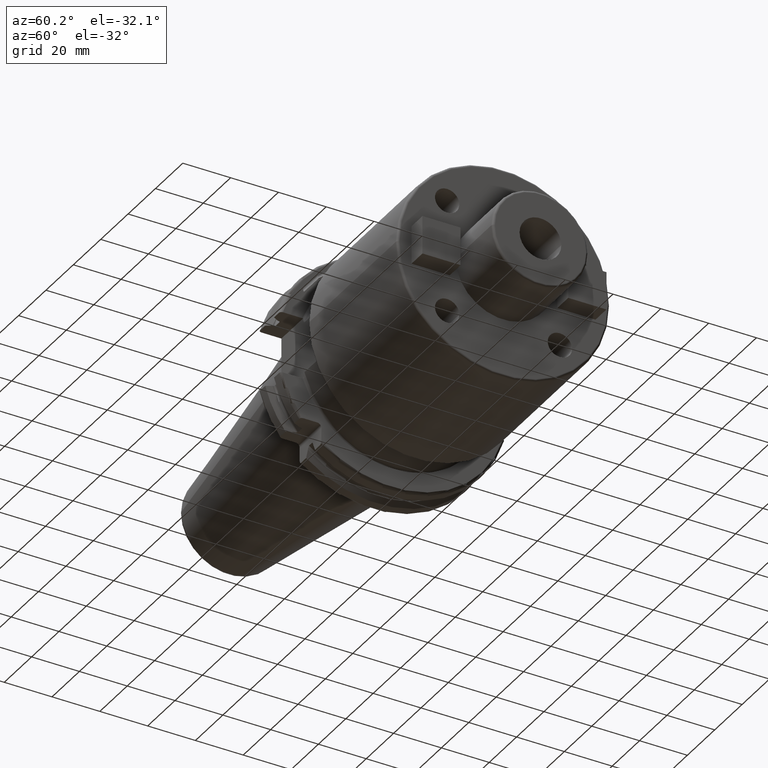
[diagram: clean part render]
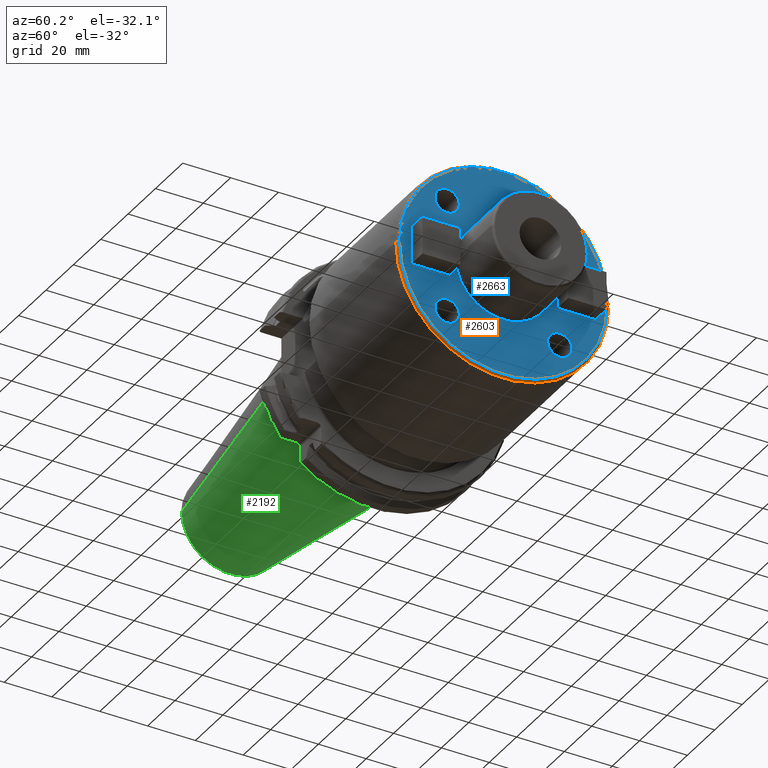
[diagram: same view with three faces highlighted in distinct colors, each labeled with its STEP entity id]
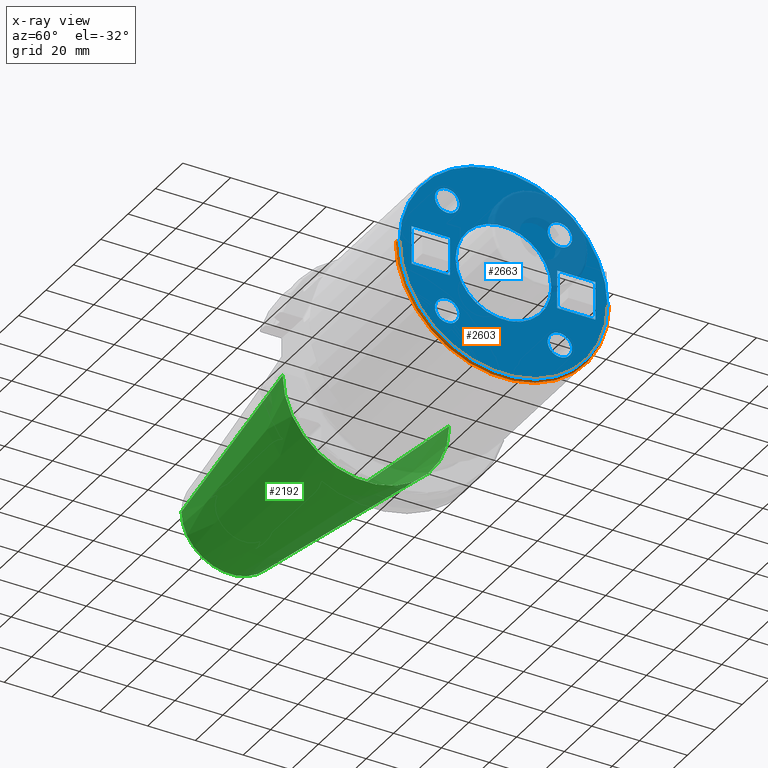
[diagram: x-ray of the same camera — body ghosted, the three highlighted faces saturated]
A machine part, auxiliary view with three faces highlighted in distinct colors.
The next image is the same camera in x-ray (body ghosted, the three faces saturated) — at least one of them is partly hidden behind the body in this view.
Their STEP definitions:

[orange] entity #2603 — the highlighted toroidal blend (fillet) surface has major radius 43.5 mm and minor (blend) radius 1 mm.
#404=CARTESIAN_POINT('',(9.9E1,0.E0,0.E0));
#405=DIRECTION('',(-1.E0,0.E0,0.E0));
#406=DIRECTION('',(0.E0,1.E0,0.E0));
#407=AXIS2_PLACEMENT_3D('',#404,#405,#406);
#428=CARTESIAN_POINT('',(9.9E1,-4.35E1,-1.196723276031E-11));
#429=DIRECTION('',(0.E0,-2.751089286934E-13,1.E0));
#430=DIRECTION('',(0.E0,-1.E0,-2.751089286934E-13));
#431=AXIS2_PLACEMENT_3D('',#428,#429,#430);
#433=CARTESIAN_POINT('',(9.9E1,4.35E1,1.196309717955E-11));
#434=DIRECTION('',(0.E0,2.750139525831E-13,-1.E0));
#435=DIRECTION('',(0.E0,1.E0,2.750139525831E-13));
#436=AXIS2_PLACEMENT_3D('',#433,#434,#435);
#448=CARTESIAN_POINT('',(1.E2,0.E0,0.E0));
#449=DIRECTION('',(-1.E0,0.E0,0.E0));
#450=DIRECTION('',(0.E0,1.E0,0.E0));
#451=AXIS2_PLACEMENT_3D('',#448,#449,#450);
#1969=CARTESIAN_POINT('',(9.9E1,4.45E1,0.E0));
#1970=CARTESIAN_POINT('',(9.9E1,-4.45E1,-1.089935651241E-14));
#1971=VERTEX_POINT('',#1969);
#1972=VERTEX_POINT('',#1970);
#1973=CARTESIAN_POINT('',(1.E2,4.35E1,0.E0));
#1974=CARTESIAN_POINT('',(1.E2,-4.35E1,-1.065442715258E-14));
#1975=VERTEX_POINT('',#1973);
#1976=VERTEX_POINT('',#1974);
#2591=CARTESIAN_POINT('',(9.9E1,0.E0,0.E0));
#2592=DIRECTION('',(1.E0,0.E0,0.E0));
#2593=DIRECTION('',(0.E0,9.999944804460E-1,3.322510740993E-3));
#2594=AXIS2_PLACEMENT_3D('',#2591,#2592,#2593);
#2595=TOROIDAL_SURFACE('',#2594,4.35E1,1.E0);
#2596=ORIENTED_EDGE('',*,*,#2543,.T.);
#2597=ORIENTED_EDGE('',*,*,#2586,.T.);
#2599=ORIENTED_EDGE('',*,*,#2598,.F.);
#2600=ORIENTED_EDGE('',*,*,#2582,.F.);
#2601=EDGE_LOOP('',(#2596,#2597,#2599,#2600));
#2602=FACE_OUTER_BOUND('',#2601,.F.);
#2603=ADVANCED_FACE('',(#2602),#2595,.T.);
#408=CIRCLE('',#407,4.45E1);
#432=CIRCLE('',#431,1.E0);
#437=CIRCLE('',#436,1.E0);
#452=CIRCLE('',#451,4.35E1);
#2543=EDGE_CURVE('',#1971,#1972,#408,.T.);
#2582=EDGE_CURVE('',#1971,#1975,#437,.T.);
#2586=EDGE_CURVE('',#1972,#1976,#432,.T.);
#2598=EDGE_CURVE('',#1975,#1976,#452,.T.);

[blue] entity #2663 — the highlighted planar face has unit normal (1, 0, 0).
#438=CARTESIAN_POINT('',(1.E2,0.E0,0.E0));
#439=DIRECTION('',(1.E0,0.E0,0.E0));
#440=DIRECTION('',(0.E0,1.E0,0.E0));
#441=AXIS2_PLACEMENT_3D('',#438,#439,#440);
#443=CARTESIAN_POINT('',(1.E2,0.E0,0.E0));
#444=DIRECTION('',(-1.E0,0.E0,0.E0));
#445=DIRECTION('',(0.E0,1.E0,0.E0));
#446=AXIS2_PLACEMENT_3D('',#443,#444,#445);
#448=CARTESIAN_POINT('',(1.E2,0.E0,0.E0));
#449=DIRECTION('',(-1.E0,0.E0,0.E0));
#450=DIRECTION('',(0.E0,1.E0,0.E0));
#451=AXIS2_PLACEMENT_3D('',#448,#449,#450);
#453=CARTESIAN_POINT('',(1.E2,0.E0,0.E0));
#454=DIRECTION('',(-1.E0,0.E0,0.E0));
#455=DIRECTION('',(0.E0,-1.E0,0.E0));
#456=AXIS2_PLACEMENT_3D('',#453,#454,#455);
#458=DIRECTION('',(0.E0,-1.E0,0.E0));
#459=VECTOR('',#458,1.6E1);
#460=CARTESIAN_POINT('',(1.E2,3.85E1,8.E0));
#461=LINE('',#460,#459);
#462=DIRECTION('',(0.E0,0.E0,-1.E0));
#463=VECTOR('',#462,1.6E1);
#464=CARTESIAN_POINT('',(1.E2,2.25E1,8.E0));
#465=LINE('',#464,#463);
#466=DIRECTION('',(0.E0,1.E0,0.E0));
#467=VECTOR('',#466,1.6E1);
#468=CARTESIAN_POINT('',(1.E2,2.25E1,-8.E0));
#469=LINE('',#468,#467);
#470=DIRECTION('',(0.E0,0.E0,1.E0));
#471=VECTOR('',#470,1.6E1);
#472=CARTESIAN_POINT('',(1.E2,3.85E1,-8.E0));
#473=LINE('',#472,#471);
#474=DIRECTION('',(0.E0,-1.E0,0.E0));
#475=VECTOR('',#474,1.6E1);
#476=CARTESIAN_POINT('',(1.E2,-2.25E1,8.E0));
#477=LINE('',#476,#475);
#478=DIRECTION('',(0.E0,0.E0,-1.E0));
#479=VECTOR('',#478,1.6E1);
#480=CARTESIAN_POINT('',(1.E2,-3.85E1,8.E0));
#481=LINE('',#480,#479);
#482=DIRECTION('',(0.E0,1.E0,0.E0));
#483=VECTOR('',#482,1.6E1);
#484=CARTESIAN_POINT('',(1.E2,-3.85E1,-8.E0));
#485=LINE('',#484,#483);
#486=DIRECTION('',(0.E0,0.E0,1.E0));
#487=VECTOR('',#486,1.6E1);
#488=CARTESIAN_POINT('',(1.E2,-2.25E1,-8.E0));
#489=LINE('',#488,#487);
#490=CARTESIAN_POINT('',(1.E2,-2.358201115257E1,-2.358201115257E1));
#491=DIRECTION('',(1.E0,0.E0,0.E0));
#492=DIRECTION('',(0.E0,-1.E0,0.E0));
#493=AXIS2_PLACEMENT_3D('',#490,#491,#492);
#495=CARTESIAN_POINT('',(1.E2,-2.358201115257E1,-2.358201115257E1));
#496=DIRECTION('',(1.E0,0.E0,0.E0));
#497=DIRECTION('',(0.E0,1.E0,0.E0));
#498=AXIS2_PLACEMENT_3D('',#495,#496,#497);
#500=CARTESIAN_POINT('',(1.E2,2.358201115257E1,-2.358201115257E1));
#501=DIRECTION('',(1.E0,0.E0,0.E0));
#502=DIRECTION('',(0.E0,0.E0,-1.E0));
#503=AXIS2_PLACEMENT_3D('',#500,#501,#502);
#505=CARTESIAN_POINT('',(1.E2,2.358201115257E1,-2.358201115257E1));
#506=DIRECTION('',(1.E0,0.E0,0.E0));
#507=DIRECTION('',(0.E0,0.E0,1.E0));
#508=AXIS2_PLACEMENT_3D('',#505,#506,#507);
#510=CARTESIAN_POINT('',(1.E2,2.358201115257E1,2.358201115257E1));
#511=DIRECTION('',(1.E0,0.E0,0.E0));
#512=DIRECTION('',(0.E0,1.E0,0.E0));
#513=AXIS2_PLACEMENT_3D('',#510,#511,#512);
#515=CARTESIAN_POINT('',(1.E2,2.358201115257E1,2.358201115257E1));
#516=DIRECTION('',(1.E0,0.E0,0.E0));
#517=DIRECTION('',(0.E0,-1.E0,0.E0));
#518=AXIS2_PLACEMENT_3D('',#515,#516,#517);
#520=CARTESIAN_POINT('',(1.E2,-2.358201115257E1,2.358201115257E1));
#521=DIRECTION('',(1.E0,0.E0,0.E0));
#522=DIRECTION('',(0.E0,0.E0,1.E0));
#523=AXIS2_PLACEMENT_3D('',#520,#521,#522);
#525=CARTESIAN_POINT('',(1.E2,-2.358201115257E1,2.358201115257E1));
#526=DIRECTION('',(1.E0,0.E0,0.E0));
#527=DIRECTION('',(0.E0,0.E0,-1.E0));
#528=AXIS2_PLACEMENT_3D('',#525,#526,#527);
#1965=CARTESIAN_POINT('',(1.E2,2.E1,0.E0));
#1966=CARTESIAN_POINT('',(1.E2,-2.E1,0.E0));
#1967=VERTEX_POINT('',#1965);
#1968=VERTEX_POINT('',#1966);
#1973=CARTESIAN_POINT('',(1.E2,4.35E1,0.E0));
#1974=CARTESIAN_POINT('',(1.E2,-4.35E1,-1.065442715258E-14));
#1975=VERTEX_POINT('',#1973);
#1976=VERTEX_POINT('',#1974);
#2011=CARTESIAN_POINT('',(1.E2,3.85E1,8.E0));
#2012=CARTESIAN_POINT('',(1.E2,2.25E1,8.E0));
#2013=VERTEX_POINT('',#2011);
#2014=VERTEX_POINT('',#2012);
#2015=CARTESIAN_POINT('',(1.E2,2.25E1,-8.E0));
#2016=VERTEX_POINT('',#2015);
#2017=CARTESIAN_POINT('',(1.E2,3.85E1,-8.E0));
#2018=VERTEX_POINT('',#2017);
#2019=CARTESIAN_POINT('',(1.E2,-2.25E1,8.E0));
#2020=CARTESIAN_POINT('',(1.E2,-3.85E1,8.E0));
#2021=VERTEX_POINT('',#2019);
#2022=VERTEX_POINT('',#2020);
#2023=CARTESIAN_POINT('',(1.E2,-3.85E1,-8.E0));
#2024=VERTEX_POINT('',#2023);
#2025=CARTESIAN_POINT('',(1.E2,-2.25E1,-8.E0));
#2026=VERTEX_POINT('',#2025);
#2085=CARTESIAN_POINT('',(1.E2,-2.868201115257E1,-2.358201115257E1));
#2086=CARTESIAN_POINT('',(1.E2,-1.848201115257E1,-2.358201115257E1));
#2087=VERTEX_POINT('',#2085);
#2088=VERTEX_POINT('',#2086);
#2095=CARTESIAN_POINT('',(1.E2,2.358201115257E1,-2.868201115257E1));
#2096=CARTESIAN_POINT('',(1.E2,2.358201115257E1,-1.848201115257E1));
#2097=VERTEX_POINT('',#2095);
#2098=VERTEX_POINT('',#2096);
#2105=CARTESIAN_POINT('',(1.E2,2.868201115257E1,2.358201115257E1));
#2106=CARTESIAN_POINT('',(1.E2,1.848201115257E1,2.358201115257E1));
#2107=VERTEX_POINT('',#2105);
#2108=VERTEX_POINT('',#2106);
#2115=CARTESIAN_POINT('',(1.E2,-2.358201115257E1,2.868201115257E1));
#2116=CARTESIAN_POINT('',(1.E2,-2.358201115257E1,1.848201115257E1));
#2117=VERTEX_POINT('',#2115);
#2118=VERTEX_POINT('',#2116);
#2604=CARTESIAN_POINT('',(1.E2,0.E0,0.E0));
#2605=DIRECTION('',(1.E0,0.E0,0.E0));
#2606=DIRECTION('',(0.E0,-1.E0,0.E0));
#2607=AXIS2_PLACEMENT_3D('',#2604,#2605,#2606);
#2608=PLANE('',#2607);
#2609=ORIENTED_EDGE('',*,*,#2598,.T.);
#2610=ORIENTED_EDGE('',*,*,#2584,.T.);
#2611=EDGE_LOOP('',(#2609,#2610));
#2612=FACE_OUTER_BOUND('',#2611,.F.);
#2614=ORIENTED_EDGE('',*,*,#2613,.T.);
#2616=ORIENTED_EDGE('',*,*,#2615,.F.);
#2617=EDGE_LOOP('',(#2614,#2616));
#2618=FACE_BOUND('',#2617,.F.);
#2620=ORIENTED_EDGE('',*,*,#2619,.T.);
#2622=ORIENTED_EDGE('',*,*,#2621,.T.);
#2624=ORIENTED_EDGE('',*,*,#2623,.T.);
#2626=ORIENTED_EDGE('',*,*,#2625,.T.);
#2627=EDGE_LOOP('',(#2620,#2622,#2624,#2626));
#2628=FACE_BOUND('',#2627,.F.);
#2630=ORIENTED_EDGE('',*,*,#2629,.T.);
#2632=ORIENTED_EDGE('',*,*,#2631,.T.);
#2634=ORIENTED_EDGE('',*,*,#2633,.T.);
#2636=ORIENTED_EDGE('',*,*,#2635,.T.);
#2637=EDGE_LOOP('',(#2630,#2632,#2634,#2636));
#2638=FACE_BOUND('',#2637,.F.);
#2640=ORIENTED_EDGE('',*,*,#2639,.T.);
#2642=ORIENTED_EDGE('',*,*,#2641,.T.);
#2643=EDGE_LOOP('',(#2640,#2642));
#2644=FACE_BOUND('',#2643,.F.);
#2646=ORIENTED_EDGE('',*,*,#2645,.T.);
#2648=ORIENTED_EDGE('',*,*,#2647,.T.);
#2649=EDGE_LOOP('',(#2646,#2648));
#2650=FACE_BOUND('',#2649,.F.);
#2652=ORIENTED_EDGE('',*,*,#2651,.T.);
#2654=ORIENTED_EDGE('',*,*,#2653,.T.);
#2655=EDGE_LOOP('',(#2652,#2654));
#2656=FACE_BOUND('',#2655,.F.);
#2658=ORIENTED_EDGE('',*,*,#2657,.T.);
#2660=ORIENTED_EDGE('',*,*,#2659,.T.);
#2661=EDGE_LOOP('',(#2658,#2660));
#2662=FACE_BOUND('',#2661,.F.);
#2663=ADVANCED_FACE('',(#2612,#2618,#2628,#2638,#2644,#2650,#2656,#2662),#2608,
.T.);
#442=CIRCLE('',#441,2.E1);
#447=CIRCLE('',#446,2.E1);
#452=CIRCLE('',#451,4.35E1);
#457=CIRCLE('',#456,4.35E1);
#494=CIRCLE('',#493,5.1E0);
#499=CIRCLE('',#498,5.1E0);
#504=CIRCLE('',#503,5.1E0);
#509=CIRCLE('',#508,5.1E0);
#514=CIRCLE('',#513,5.1E0);
#519=CIRCLE('',#518,5.1E0);
#524=CIRCLE('',#523,5.1E0);
#529=CIRCLE('',#528,5.1E0);
#2584=EDGE_CURVE('',#1976,#1975,#457,.T.);
#2598=EDGE_CURVE('',#1975,#1976,#452,.T.);
#2613=EDGE_CURVE('',#1967,#1968,#442,.T.);
#2615=EDGE_CURVE('',#1967,#1968,#447,.T.);
#2619=EDGE_CURVE('',#2013,#2014,#461,.T.);
#2621=EDGE_CURVE('',#2014,#2016,#465,.T.);
#2623=EDGE_CURVE('',#2016,#2018,#469,.T.);
#2625=EDGE_CURVE('',#2018,#2013,#473,.T.);
#2629=EDGE_CURVE('',#2021,#2022,#477,.T.);
#2631=EDGE_CURVE('',#2022,#2024,#481,.T.);
#2633=EDGE_CURVE('',#2024,#2026,#485,.T.);
#2635=EDGE_CURVE('',#2026,#2021,#489,.T.);
#2639=EDGE_CURVE('',#2087,#2088,#494,.T.);
#2641=EDGE_CURVE('',#2088,#2087,#499,.T.);
#2645=EDGE_CURVE('',#2097,#2098,#504,.T.);
#2647=EDGE_CURVE('',#2098,#2097,#509,.T.);
#2651=EDGE_CURVE('',#2107,#2108,#514,.T.);
#2653=EDGE_CURVE('',#2108,#2107,#519,.T.);
#2657=EDGE_CURVE('',#2117,#2118,#524,.T.);
#2659=EDGE_CURVE('',#2118,#2117,#529,.T.);

[green] entity #2192 — the highlighted conical surface has half-angle 8.298 deg.
#32=CARTESIAN_POINT('',(-9.967471700563E1,0.E0,0.E0));
#33=DIRECTION('',(-1.E0,0.E0,0.E0));
#34=DIRECTION('',(0.E0,1.E0,0.E0));
#35=AXIS2_PLACEMENT_3D('',#32,#33,#34);
#47=DIRECTION('',(-9.895312636440E-1,-1.443186691705E-1,0.E0));
#48=VECTOR('',#47,1.002343617797E2);
#49=CARTESIAN_POINT('',(-4.896823332305E-1,3.485358204157E1,0.E0));
#50=LINE('',#49,#48);
#51=DIRECTION('',(-9.895312636440E-1,1.443186691705E-1,0.E0));
#52=VECTOR('',#51,1.002343617797E2);
#53=CARTESIAN_POINT('',(-4.896823332305E-1,-3.485358204157E1,0.E0));
#54=LINE('',#53,#52);
#55=CARTESIAN_POINT('',(-4.896823332305E-1,0.E0,0.E0));
#56=DIRECTION('',(-1.E0,0.E0,0.E0));
#57=DIRECTION('',(0.E0,1.E0,0.E0));
#58=AXIS2_PLACEMENT_3D('',#55,#56,#57);
#1755=CARTESIAN_POINT('',(-9.967471700563E1,2.038789234437E1,0.E0));
#1757=VERTEX_POINT('',#1755);
#1759=CARTESIAN_POINT('',(-9.967471700563E1,-2.038789234437E1,0.E0));
#1761=VERTEX_POINT('',#1759);
#1823=CARTESIAN_POINT('',(-4.896823332305E-1,3.485358204157E1,0.E0));
#1824=VERTEX_POINT('',#1823);
#1825=CARTESIAN_POINT('',(-4.896823332305E-1,-3.485358204157E1,0.E0));
#1826=VERTEX_POINT('',#1825);
#2180=CARTESIAN_POINT('',(-5.008219966943E1,0.E0,0.E0));
#2181=DIRECTION('',(1.E0,0.E0,0.E0));
#2182=DIRECTION('',(0.E0,-1.E0,0.E0));
#2183=AXIS2_PLACEMENT_3D('',#2180,#2181,#2182);
#2184=CONICAL_SURFACE('',#2183,2.762073719297E1,8.297826828206E0);
#2185=ORIENTED_EDGE('',*,*,#2170,.T.);
#2186=ORIENTED_EDGE('',*,*,#2147,.T.);
#2187=ORIENTED_EDGE('',*,*,#2174,.F.);
#2189=ORIENTED_EDGE('',*,*,#2188,.F.);
#2190=EDGE_LOOP('',(#2185,#2186,#2187,#2189));
#2191=FACE_OUTER_BOUND('',#2190,.F.);
#2192=ADVANCED_FACE('',(#2191),#2184,.T.);
#36=CIRCLE('',#35,2.038789234437E1);
#59=CIRCLE('',#58,3.485358204157E1);
#2147=EDGE_CURVE('',#1757,#1761,#36,.T.);
#2170=EDGE_CURVE('',#1824,#1757,#50,.T.);
#2174=EDGE_CURVE('',#1826,#1761,#54,.T.);
#2188=EDGE_CURVE('',#1824,#1826,#59,.T.);